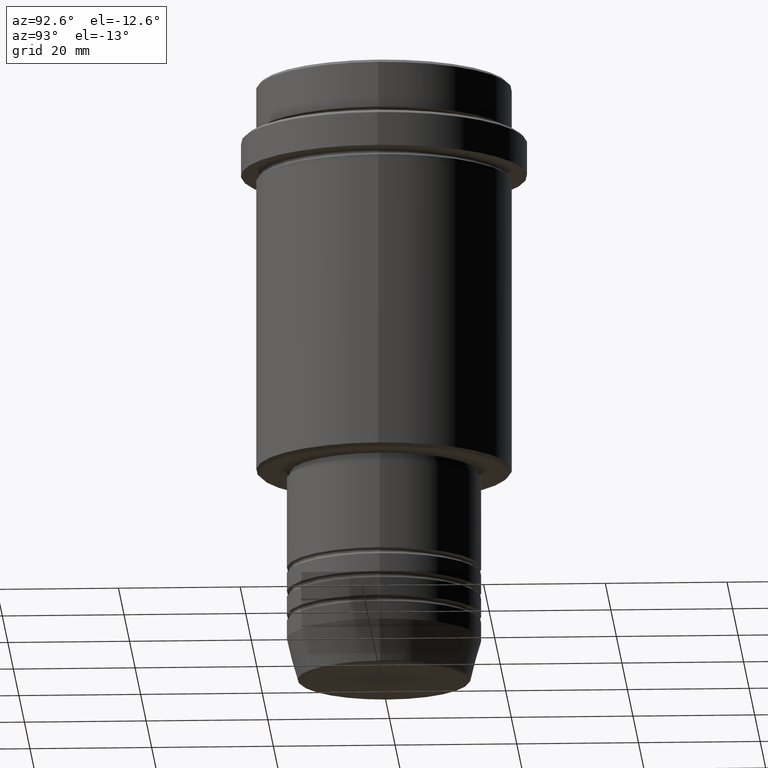
[diagram: clean part render]
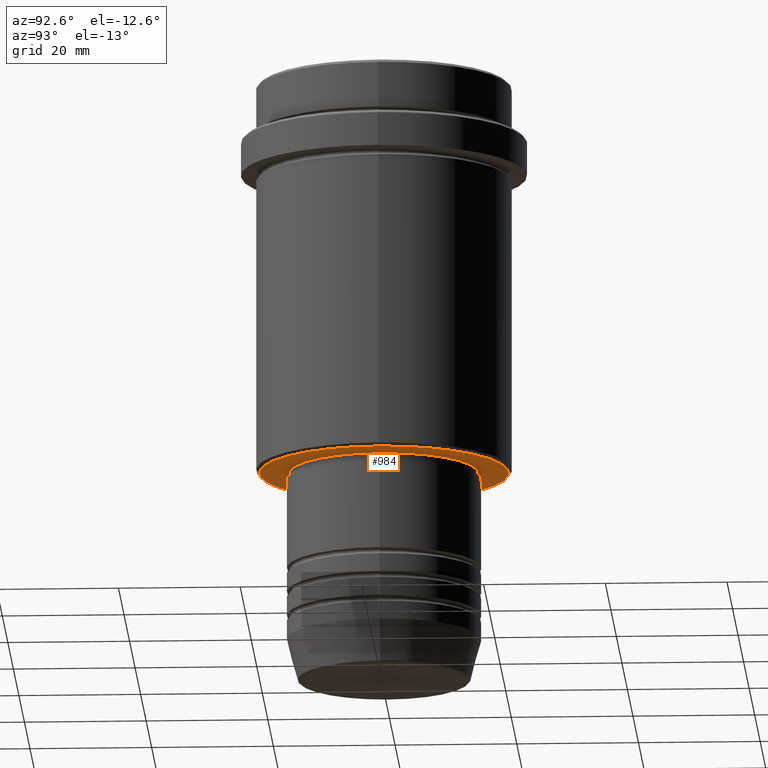
[diagram: same view with one face highlighted and labeled with its STEP entity id]
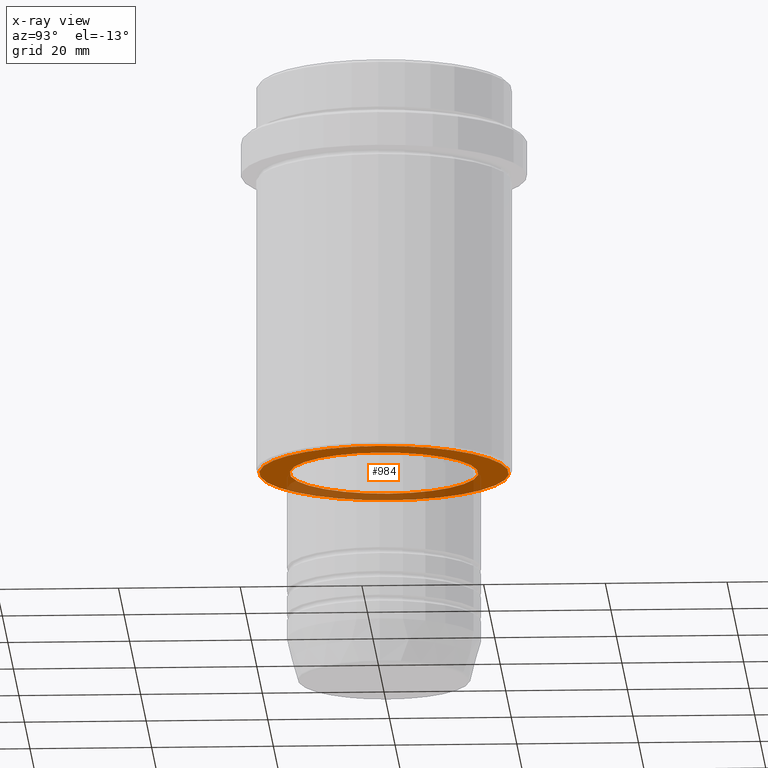
[diagram: x-ray of the same camera — body ghosted, the highlighted face saturated]
A machine part, auxiliary view. The second image highlights one B-rep face of the part: STEP entity #984.
The next image is the same camera in x-ray: the body ghosted, the highlighted face saturated — about 33% of this face is hidden behind the body in this view.
In plain terms, the highlighted planar face has unit normal (0, 0, -1).
Its self-contained STEP definition (entity closure, byte-faithful):
#108 = DIRECTION ( 'NONE',  ( 0.000000000000000000, 0.000000000000000000, -1.000000000000000000 ) ) ;
#121 = CARTESIAN_POINT ( 'NONE',  ( 0.000000000000000000, 0.000000000000000000, -65.00000000000000000 ) ) ;
#138 = DIRECTION ( 'NONE',  ( 0.000000000000000000, 0.000000000000000000, -1.000000000000000000 ) ) ;
#201 = DIRECTION ( 'NONE',  ( 1.000000000000000000, 0.000000000000000000, 0.000000000000000000 ) ) ;
#223 = AXIS2_PLACEMENT_3D ( 'NONE', #121, #1316, #898 ) ;
#229 = DIRECTION ( 'NONE',  ( -1.000000000000000000, 0.000000000000000000, -0.000000000000000000 ) ) ;
#233 = EDGE_CURVE ( 'NONE', #387, #1380, #978, .T. ) ;
#234 = CARTESIAN_POINT ( 'NONE',  ( 15.49999999999999645, 0.000000000000000000, -65.00000000000000000 ) ) ;
#255 = ORIENTED_EDGE ( 'NONE', *, *, #233, .T. ) ;
#280 = DIRECTION ( 'NONE',  ( -0.000000000000000000, -0.000000000000000000, 1.000000000000000000 ) ) ;
#284 = DIRECTION ( 'NONE',  ( -1.000000000000000000, 0.000000000000000000, 0.000000000000000000 ) ) ;
#357 = CIRCLE ( 'NONE', #1366, 15.49999999999999645 ) ;
#387 = VERTEX_POINT ( 'NONE', #421 ) ;
#403 = EDGE_CURVE ( 'NONE', #1380, #387, #1051, .T. ) ;
#414 = CARTESIAN_POINT ( 'NONE',  ( -15.49999999999999645, 1.898202538678397163E-15, -65.00000000000000000 ) ) ;
#421 = CARTESIAN_POINT ( 'NONE',  ( -20.49999999999998934, 2.541142108230757480E-15, -65.00000000000000000 ) ) ;
#510 = VERTEX_POINT ( 'NONE', #234 ) ;
#537 = EDGE_CURVE ( 'NONE', #510, #861, #845, .T. ) ;
#547 = EDGE_LOOP ( 'NONE', ( #689, #736 ) ) ;
#652 = FACE_BOUND ( 'NONE', #547, .T. ) ;
#689 = ORIENTED_EDGE ( 'NONE', *, *, #537, .T. ) ;
#713 = CARTESIAN_POINT ( 'NONE',  ( 0.000000000000000000, 0.000000000000000000, -65.00000000000000000 ) ) ;
#736 = ORIENTED_EDGE ( 'NONE', *, *, #1274, .T. ) ;
#777 = PLANE ( 'NONE',  #1184 ) ;
#786 = EDGE_LOOP ( 'NONE', ( #1231, #255 ) ) ;
#819 = AXIS2_PLACEMENT_3D ( 'NONE', #1090, #108, #1204 ) ;
#832 = CARTESIAN_POINT ( 'NONE',  ( 0.000000000000000000, 0.000000000000000000, -65.00000000000000000 ) ) ;
#845 = CIRCLE ( 'NONE', #223, 15.49999999999999645 ) ;
#861 = VERTEX_POINT ( 'NONE', #414 ) ;
#890 = CARTESIAN_POINT ( 'NONE',  ( 20.49999999999998934, 0.000000000000000000, -65.00000000000000000 ) ) ;
#891 = FACE_OUTER_BOUND ( 'NONE', #786, .T. ) ;
#898 = DIRECTION ( 'NONE',  ( 1.000000000000000000, 0.000000000000000000, 0.000000000000000000 ) ) ;
#935 = DIRECTION ( 'NONE',  ( 0.000000000000000000, 0.000000000000000000, -1.000000000000000000 ) ) ;
#978 = CIRCLE ( 'NONE', #1211, 20.49999999999998934 ) ;
#984 = ADVANCED_FACE ( 'NONE', ( #891, #652 ), #777, .T. ) ;
#1051 = CIRCLE ( 'NONE', #819, 20.49999999999998934 ) ;
#1090 = CARTESIAN_POINT ( 'NONE',  ( 0.000000000000000000, 0.000000000000000000, -65.00000000000000000 ) ) ;
#1184 = AXIS2_PLACEMENT_3D ( 'NONE', #1217, #138, #229 ) ;
#1204 = DIRECTION ( 'NONE',  ( -1.000000000000000000, 0.000000000000000000, 0.000000000000000000 ) ) ;
#1211 = AXIS2_PLACEMENT_3D ( 'NONE', #713, #935, #284 ) ;
#1217 = CARTESIAN_POINT ( 'NONE',  ( 0.000000000000000000, 21.00000000000000000, -65.00000000000000000 ) ) ;
#1231 = ORIENTED_EDGE ( 'NONE', *, *, #403, .T. ) ;
#1274 = EDGE_CURVE ( 'NONE', #861, #510, #357, .T. ) ;
#1316 = DIRECTION ( 'NONE',  ( -0.000000000000000000, -0.000000000000000000, 1.000000000000000000 ) ) ;
#1366 = AXIS2_PLACEMENT_3D ( 'NONE', #832, #280, #201 ) ;
#1380 = VERTEX_POINT ( 'NONE', #890 ) ;